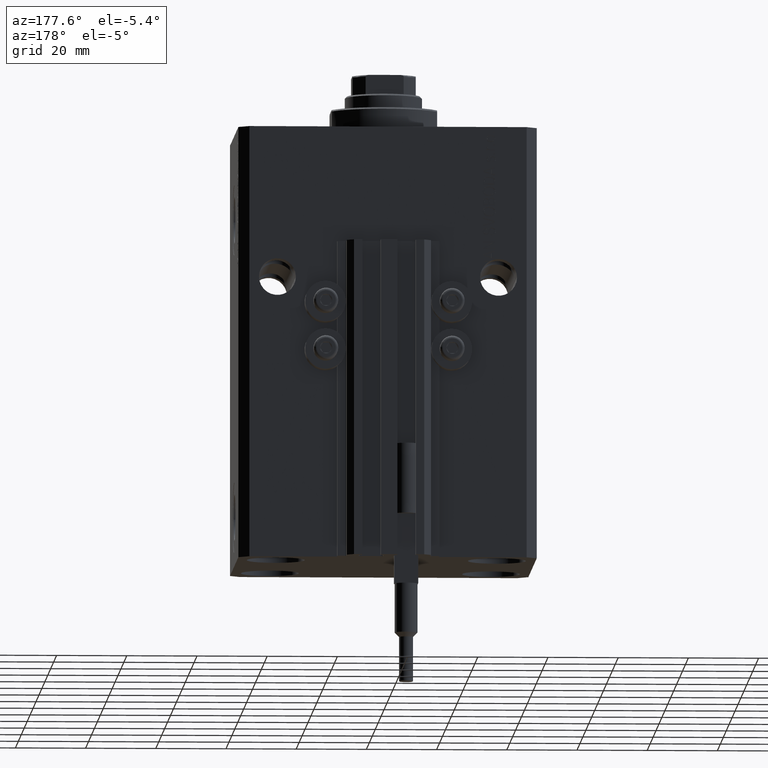
[diagram: clean part render]
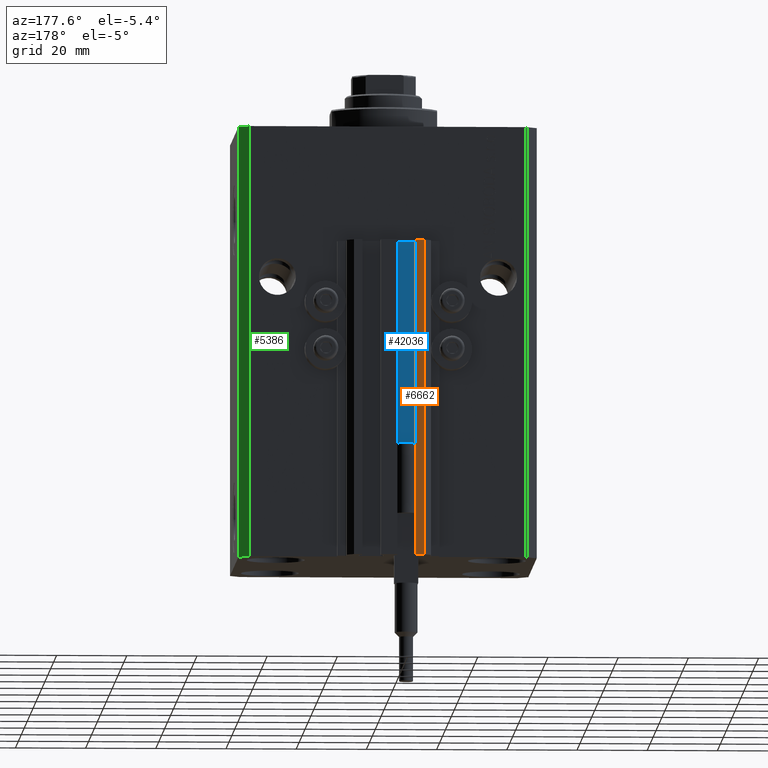
[diagram: same view with three faces highlighted in distinct colors, each labeled with its STEP entity id]
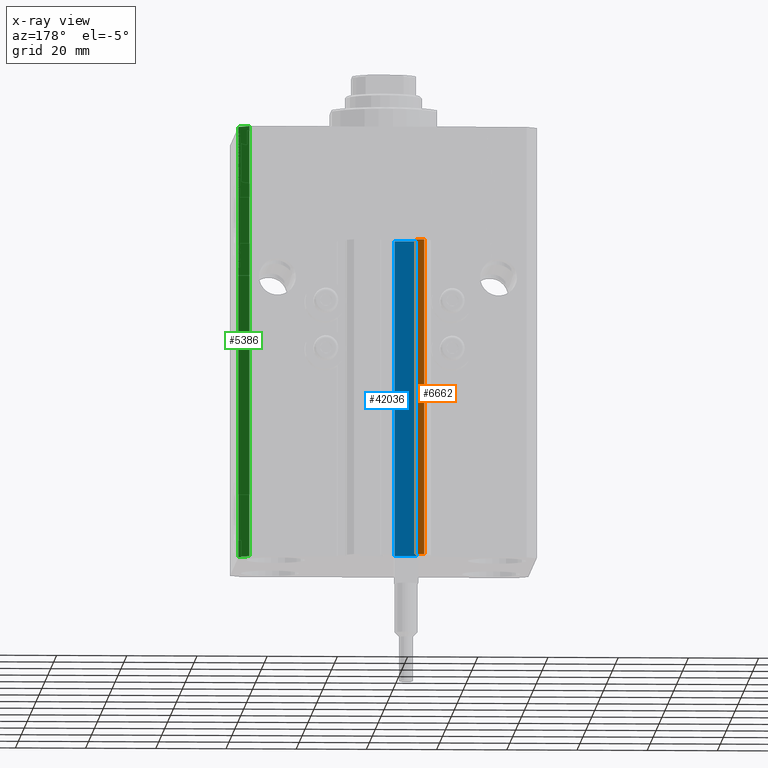
[diagram: x-ray of the same camera — body ghosted, the three highlighted faces saturated]
A machine part, auxiliary view with three faces highlighted in distinct colors.
The next image is the same camera in x-ray (body ghosted, the three faces saturated) — at least one of them is partly hidden behind the body in this view.
Their STEP definitions:

[orange] entity #6662 — the highlighted planar face has unit normal (0, 1, 0).
#933 = LINE ( 'NONE', #38848, #37091 ) ;
#5334 = DIRECTION ( 'NONE',  ( 0.000000000000000000, 0.000000000000000000, 1.000000000000000000 ) ) ;
#6014 = EDGE_LOOP ( 'NONE', ( #7725, #46747, #37910, #14262 ) ) ;
#6662 = ADVANCED_FACE ( 'NONE', ( #7331 ), #29343, .T. ) ;
#7098 = CARTESIAN_POINT ( 'NONE',  ( -10.00000000000000000, 39.49999999999999289, -123.0000000000000000 ) ) ;
#7232 = CARTESIAN_POINT ( 'NONE',  ( -7.650000000000002132, 39.49999999999999289, -123.0000000000000000 ) ) ;
#7331 = FACE_OUTER_BOUND ( 'NONE', #6014, .T. ) ;
#7725 = ORIENTED_EDGE ( 'NONE', *, *, #26006, .F. ) ;
#8694 = CARTESIAN_POINT ( 'NONE',  ( -10.00000000000000000, 39.49999999999999289, -123.0000000000000000 ) ) ;
#14262 = ORIENTED_EDGE ( 'NONE', *, *, #36138, .T. ) ;
#15049 = CARTESIAN_POINT ( 'NONE',  ( -7.650000000000002132, 39.49999999999999289, -123.0000000000000000 ) ) ;
#16399 = VECTOR ( 'NONE', #47410, 1000.000000000000000 ) ;
#18839 = CARTESIAN_POINT ( 'NONE',  ( -7.650000000000002132, 39.49999999999999289, -123.0000000000000000 ) ) ;
#21905 = CARTESIAN_POINT ( 'NONE',  ( -7.650000000000002132, 39.49999999999999289, -33.00000000000000000 ) ) ;
#22034 = VERTEX_POINT ( 'NONE', #8694 ) ;
#23514 = VECTOR ( 'NONE', #44753, 1000.000000000000000 ) ;
#25034 = CARTESIAN_POINT ( 'NONE',  ( -10.00000000000000000, 39.49999999999999289, -33.00000000000000000 ) ) ;
#26006 = EDGE_CURVE ( 'NONE', #33983, #26125, #45343, .T. ) ;
#26125 = VERTEX_POINT ( 'NONE', #25034 ) ;
#29343 = PLANE ( 'NONE',  #36496 ) ;
#30058 = DIRECTION ( 'NONE',  ( 0.000000000000000000, 0.000000000000000000, 1.000000000000000000 ) ) ;
#33752 = EDGE_CURVE ( 'NONE', #35634, #22034, #41432, .T. ) ;
#33849 = DIRECTION ( 'NONE',  ( -1.000000000000000000, 0.000000000000000000, 0.000000000000000000 ) ) ;
#33983 = VERTEX_POINT ( 'NONE', #43843 ) ;
#35634 = VERTEX_POINT ( 'NONE', #7232 ) ;
#36137 = VECTOR ( 'NONE', #33849, 1000.000000000000000 ) ;
#36138 = EDGE_CURVE ( 'NONE', #22034, #26125, #36693, .T. ) ;
#36496 = AXIS2_PLACEMENT_3D ( 'NONE', #18839, #36936, #30058 ) ;
#36693 = LINE ( 'NONE', #7098, #23514 ) ;
#36936 = DIRECTION ( 'NONE',  ( 0.000000000000000000, 1.000000000000000000, -0.000000000000000000 ) ) ;
#37091 = VECTOR ( 'NONE', #5334, 1000.000000000000000 ) ;
#37910 = ORIENTED_EDGE ( 'NONE', *, *, #33752, .T. ) ;
#38848 = CARTESIAN_POINT ( 'NONE',  ( -7.650000000000002132, 39.49999999999999289, -123.0000000000000000 ) ) ;
#41432 = LINE ( 'NONE', #15049, #16399 ) ;
#43843 = CARTESIAN_POINT ( 'NONE',  ( -7.650000000000002132, 39.49999999999999289, -33.00000000000000000 ) ) ;
#44753 = DIRECTION ( 'NONE',  ( 0.000000000000000000, 0.000000000000000000, 1.000000000000000000 ) ) ;
#45343 = LINE ( 'NONE', #21905, #36137 ) ;
#46747 = ORIENTED_EDGE ( 'NONE', *, *, #48268, .F. ) ;
#47410 = DIRECTION ( 'NONE',  ( -1.000000000000000000, 0.000000000000000000, 0.000000000000000000 ) ) ;
#48268 = EDGE_CURVE ( 'NONE', #35634, #33983, #933, .T. ) ;

[blue] entity #42036 — the highlighted planar face has unit normal (0, 1, 0).
#150 = AXIS2_PLACEMENT_3D ( 'NONE', #48119, #29985, #29497 ) ;
#1435 = ORIENTED_EDGE ( 'NONE', *, *, #38905, .F. ) ;
#1962 = CARTESIAN_POINT ( 'NONE',  ( -8.199999999999997513, 33.50000000000000000, -123.0000000000000000 ) ) ;
#3103 = PLANE ( 'NONE',  #150 ) ;
#3340 = FACE_OUTER_BOUND ( 'NONE', #32834, .T. ) ;
#4705 = DIRECTION ( 'NONE',  ( -1.000000000000000000, 0.000000000000000000, 0.000000000000000000 ) ) ;
#5963 = ORIENTED_EDGE ( 'NONE', *, *, #44651, .F. ) ;
#8381 = CARTESIAN_POINT ( 'NONE',  ( -1.800000000000000933, 33.50000000000000000, -123.0000000000000000 ) ) ;
#10428 = VECTOR ( 'NONE', #23408, 1000.000000000000000 ) ;
#12834 = VERTEX_POINT ( 'NONE', #20057 ) ;
#15069 = ORIENTED_EDGE ( 'NONE', *, *, #15244, .T. ) ;
#15244 = EDGE_CURVE ( 'NONE', #48090, #26221, #15785, .T. ) ;
#15785 = LINE ( 'NONE', #44231, #38201 ) ;
#19473 = EDGE_CURVE ( 'NONE', #12834, #48090, #35027, .T. ) ;
#20057 = CARTESIAN_POINT ( 'NONE',  ( -1.800000000000000933, 33.50000000000000000, -123.0000000000000000 ) ) ;
#23408 = DIRECTION ( 'NONE',  ( 0.000000000000000000, 0.000000000000000000, 1.000000000000000000 ) ) ;
#25066 = VECTOR ( 'NONE', #47986, 1000.000000000000000 ) ;
#25762 = CARTESIAN_POINT ( 'NONE',  ( -8.199999999999997513, 33.50000000000000000, -33.00000000000000000 ) ) ;
#26221 = VERTEX_POINT ( 'NONE', #25762 ) ;
#27800 = CARTESIAN_POINT ( 'NONE',  ( -1.800000000000000933, 33.50000000000000000, -123.0000000000000000 ) ) ;
#29497 = DIRECTION ( 'NONE',  ( 0.000000000000000000, 0.000000000000000000, 1.000000000000000000 ) ) ;
#29985 = DIRECTION ( 'NONE',  ( 0.000000000000000000, 1.000000000000000000, -0.000000000000000000 ) ) ;
#32834 = EDGE_LOOP ( 'NONE', ( #1435, #5963, #38766, #15069 ) ) ;
#33036 = CARTESIAN_POINT ( 'NONE',  ( -1.800000000000000933, 33.50000000000000000, -33.00000000000000000 ) ) ;
#35027 = LINE ( 'NONE', #8381, #39953 ) ;
#37438 = LINE ( 'NONE', #33036, #25066 ) ;
#38201 = VECTOR ( 'NONE', #41699, 1000.000000000000000 ) ;
#38766 = ORIENTED_EDGE ( 'NONE', *, *, #19473, .T. ) ;
#38905 = EDGE_CURVE ( 'NONE', #40074, #26221, #37438, .T. ) ;
#39953 = VECTOR ( 'NONE', #4705, 1000.000000000000000 ) ;
#40074 = VERTEX_POINT ( 'NONE', #45940 ) ;
#41699 = DIRECTION ( 'NONE',  ( 0.000000000000000000, 0.000000000000000000, 1.000000000000000000 ) ) ;
#41738 = LINE ( 'NONE', #27800, #10428 ) ;
#42036 = ADVANCED_FACE ( 'NONE', ( #3340 ), #3103, .T. ) ;
#44231 = CARTESIAN_POINT ( 'NONE',  ( -8.199999999999997513, 33.50000000000000000, -123.0000000000000000 ) ) ;
#44651 = EDGE_CURVE ( 'NONE', #12834, #40074, #41738, .T. ) ;
#45940 = CARTESIAN_POINT ( 'NONE',  ( -1.800000000000000933, 33.50000000000000000, -33.00000000000000000 ) ) ;
#47986 = DIRECTION ( 'NONE',  ( -1.000000000000000000, 0.000000000000000000, 0.000000000000000000 ) ) ;
#48090 = VERTEX_POINT ( 'NONE', #1962 ) ;
#48119 = CARTESIAN_POINT ( 'NONE',  ( -1.800000000000000933, 33.50000000000000000, -123.0000000000000000 ) ) ;

[green] entity #5386 — the highlighted planar face has unit normal (0.7071, 0.7071, 0).
#203 = EDGE_CURVE ( 'NONE', #2713, #9737, #42604, .T. ) ;
#1813 = LINE ( 'NONE', #23847, #11632 ) ;
#2713 = VERTEX_POINT ( 'NONE', #25180 ) ;
#2966 = EDGE_CURVE ( 'NONE', #7720, #9737, #24631, .T. ) ;
#3227 = EDGE_CURVE ( 'NONE', #14830, #2713, #1813, .T. ) ;
#3577 = CARTESIAN_POINT ( 'NONE',  ( 39.50000000000056843, 31.50000000000000000, 0.000000000000000000 ) ) ;
#5386 = ADVANCED_FACE ( 'NONE', ( #42147 ), #8637, .T. ) ;
#7720 = VERTEX_POINT ( 'NONE', #36163 ) ;
#8609 = DIRECTION ( 'NONE',  ( 0.000000000000000000, 0.000000000000000000, 1.000000000000000000 ) ) ;
#8637 = PLANE ( 'NONE',  #38036 ) ;
#9096 = CARTESIAN_POINT ( 'NONE',  ( 39.50000000000056843, 31.50000000000000000, -123.0000000000000000 ) ) ;
#9737 = VERTEX_POINT ( 'NONE', #3577 ) ;
#10068 = VECTOR ( 'NONE', #35846, 1000.000000000000114 ) ;
#10330 = EDGE_CURVE ( 'NONE', #14830, #7720, #17187, .T. ) ;
#11632 = VECTOR ( 'NONE', #16263, 1000.000000000000114 ) ;
#13077 = VECTOR ( 'NONE', #32070, 1000.000000000000000 ) ;
#14830 = VERTEX_POINT ( 'NONE', #17424 ) ;
#16263 = DIRECTION ( 'NONE',  ( -0.7071067811865356934, 0.7071067811865594521, 0.000000000000000000 ) ) ;
#17187 = LINE ( 'NONE', #39434, #13077 ) ;
#17424 = CARTESIAN_POINT ( 'NONE',  ( 42.50000000000051870, 28.49999999999995381, -123.0000000000000000 ) ) ;
#20139 = DIRECTION ( 'NONE',  ( -0.7071067811865355823, 0.7071067811865594521, 0.000000000000000000 ) ) ;
#23818 = CARTESIAN_POINT ( 'NONE',  ( 42.50000000000051870, 28.49999999999995381, -123.0000000000000000 ) ) ;
#23847 = CARTESIAN_POINT ( 'NONE',  ( 42.50000000000051870, 28.49999999999995381, -123.0000000000000000 ) ) ;
#24631 = LINE ( 'NONE', #39530, #10068 ) ;
#25180 = CARTESIAN_POINT ( 'NONE',  ( 39.50000000000056843, 31.50000000000000000, -123.0000000000000000 ) ) ;
#27651 = ORIENTED_EDGE ( 'NONE', *, *, #203, .T. ) ;
#32070 = DIRECTION ( 'NONE',  ( 0.000000000000000000, 0.000000000000000000, 1.000000000000000000 ) ) ;
#32358 = ORIENTED_EDGE ( 'NONE', *, *, #10330, .F. ) ;
#32597 = VECTOR ( 'NONE', #8609, 1000.000000000000000 ) ;
#32695 = ORIENTED_EDGE ( 'NONE', *, *, #3227, .T. ) ;
#35846 = DIRECTION ( 'NONE',  ( -0.7071067811865356934, 0.7071067811865594521, 0.000000000000000000 ) ) ;
#36163 = CARTESIAN_POINT ( 'NONE',  ( 42.50000000000051870, 28.49999999999995381, 0.000000000000000000 ) ) ;
#37140 = EDGE_LOOP ( 'NONE', ( #45400, #32358, #32695, #27651 ) ) ;
#38036 = AXIS2_PLACEMENT_3D ( 'NONE', #23818, #38724, #20139 ) ;
#38724 = DIRECTION ( 'NONE',  ( 0.7071067811865594521, 0.7071067811865355823, -0.000000000000000000 ) ) ;
#39434 = CARTESIAN_POINT ( 'NONE',  ( 42.50000000000051870, 28.49999999999995381, -123.0000000000000000 ) ) ;
#39530 = CARTESIAN_POINT ( 'NONE',  ( 42.50000000000051870, 28.49999999999995381, 0.000000000000000000 ) ) ;
#42147 = FACE_OUTER_BOUND ( 'NONE', #37140, .T. ) ;
#42604 = LINE ( 'NONE', #9096, #32597 ) ;
#45400 = ORIENTED_EDGE ( 'NONE', *, *, #2966, .F. ) ;